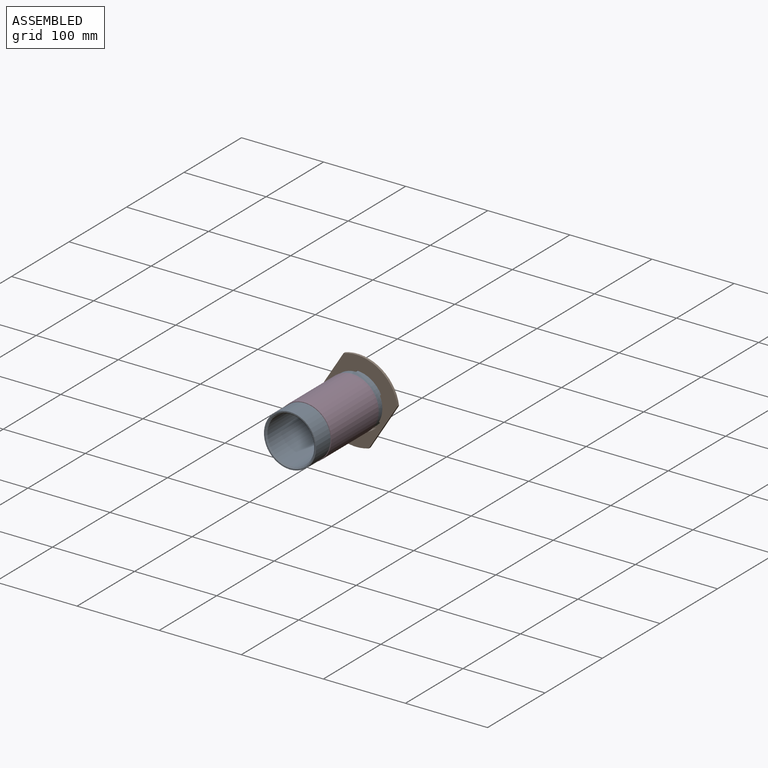
[diagram: assembled view]
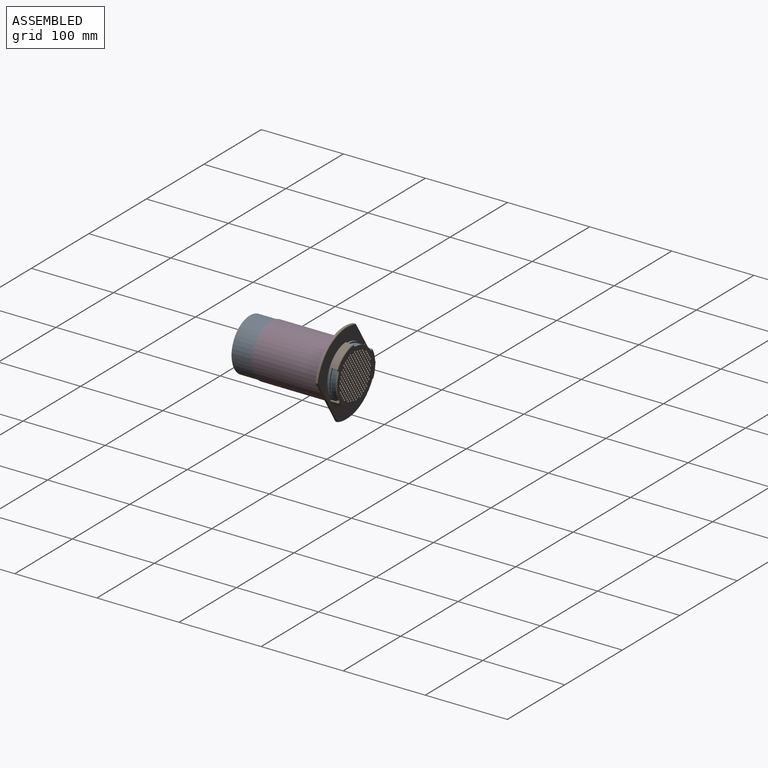
[diagram: assembled view, second angle]
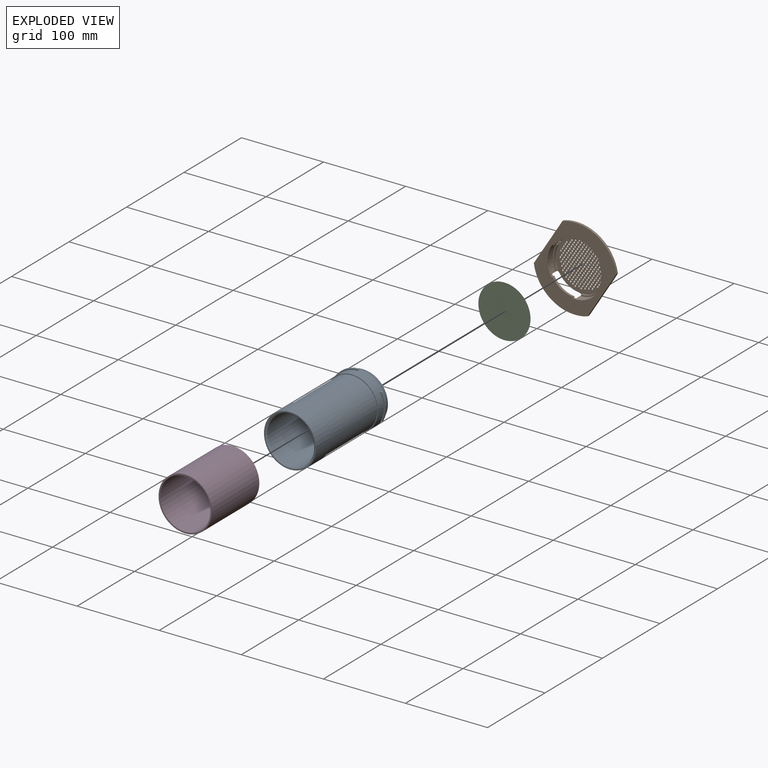
[diagram: exploded view]
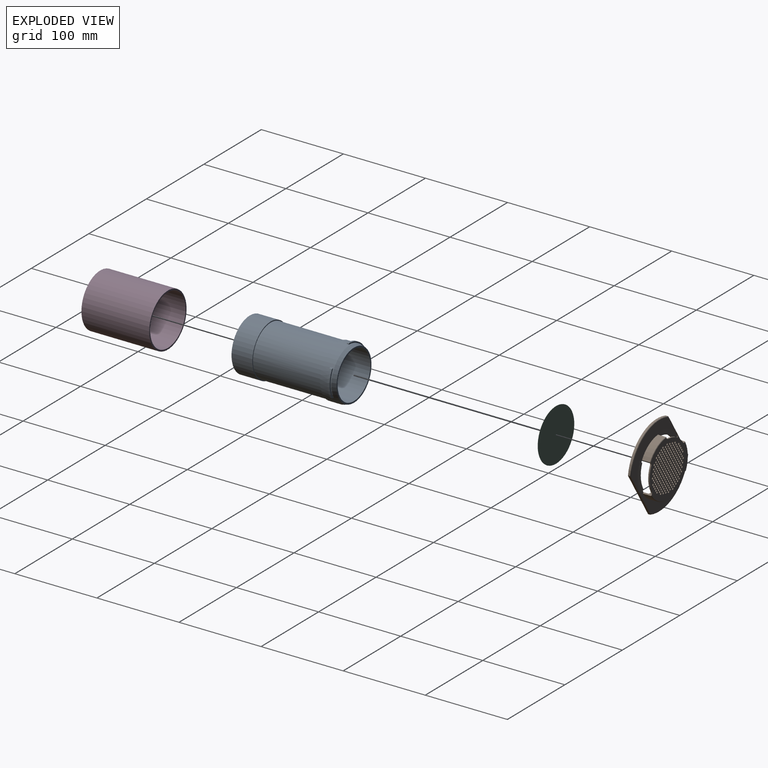
[diagram: exploded view, second angle]
ASSEMBLY  parts=4 mates=4
PART A: 37 faces, bbox 65.1x127x66.7 mm
  f0: cylinder r=31.75mm len=63.5mm, axis (0,1,0), area 2501.5mm2, adj f8,f9,f10,f13,f17,f18,f19,f22
  f1: cylinder r=31.75mm len=63.5mm, axis (0,1,0), area 5067.1mm2, adj f3,f35
  f2: cylinder r=28.57mm len=125.41mm, axis (0,1,0), area 22516.8mm2, adj f4,f36
  f3: plane 63.5x63.5mm, normal (0,-1,0), area 308.8mm2, adj f1,f36
  f4: plane 60.78x60.78mm, normal (0,1,0), area 336mm2, adj f2,f32
  f5: plane 3.17x0.06mm, normal (-0.5,0,0.87), area 0.2mm2, adj f8,f9,f10,f11
  f6: cylinder r=33.34mm len=31.98mm, axis (0,1,0), area 91.3mm2, adj f8,f9,f11,f12
  f7: plane 2.31x0.06mm, normal (-0.5,0,-0.87), area 0.1mm2, adj f8,f9,f12,f13
  f8: plane 33.03x6.22mm, normal (0,1,0), area 54.1mm2, adj f0,f5,f6,f7,f10,f11,f12,f13
  f9: plane 33.05x6.24mm, normal (0,-1,-0.03), area 54.1mm2, adj f0,f5,f6,f7,f10,f11,f12,f13
  f10: cylinder r=0.76mm len=3.17mm, axis (0,1,0), area 3.7mm2, adj f0,f5,f8,f9
  f11: cylinder r=0.76mm len=3.17mm, axis (0,1,0), area 3.8mm2, adj f5,f6,f8,f9
  f12: cylinder r=0.76mm len=2.32mm, axis (0,1,0), area 2.8mm2, adj f6,f7,f8,f9
  f13: cylinder r=0.76mm len=2.31mm, axis (0,1,0), area 2.7mm2, adj f0,f7,f8,f9
  f14: plane 3.17x0.06mm, normal (1,0,0), area 0.2mm2, adj f17,f18,f19,f20
  f15: cylinder r=33.34mm len=27.69mm, axis (0,1,0), area 91.3mm2, adj f17,f18,f20,f21
  f16: plane 2.31x0.06mm, normal (-0.5,0,0.87), area 0.1mm2, adj f17,f18,f21,f22
  f17: plane 29.33x18.1mm, normal (0,1,0), area 54.1mm2, adj f0,f14,f15,f16,f19,f20,f21,f22
  f18: plane 29.35x18.12mm, normal (-0.02,-1,0.01), area 54.1mm2, adj f0,f14,f15,f16,f19,f20,f21,f22
  f19: cylinder r=0.76mm len=3.17mm, axis (0,1,0), area 3.7mm2, adj f0,f14,f17,f18
  f20: cylinder r=0.76mm len=3.17mm, axis (0,1,0), area 3.8mm2, adj f14,f15,f17,f18
  f21: cylinder r=0.76mm len=2.32mm, axis (0,1,0), area 2.8mm2, adj f15,f16,f17,f18
  f22: cylinder r=0.76mm len=2.31mm, axis (0,1,0), area 2.7mm2, adj f0,f16,f17,f18
  f23: plane 3.17x0.06mm, normal (-0.5,0,-0.87), area 0.2mm2, adj f26,f27,f28,f29
  f24: cylinder r=33.34mm len=27.69mm, axis (0,1,0), area 91.3mm2, adj f26,f27,f29,f30
  f25: plane 2.31x0.06mm, normal (1,0,0), area 0.1mm2, adj f26,f27,f30,f31
  f26: plane 29.33x18.1mm, normal (0,1,0), area 54.1mm2, adj f0,f23,f24,f25,f28,f29,f30,f31
  f27: plane 29.35x18.12mm, normal (0.02,-1,0.01), area 54.1mm2, adj f0,f23,f24,f25,f28,f29,f30,f31
  f28: cylinder r=0.76mm len=3.17mm, axis (0,1,0), area 3.7mm2, adj f0,f23,f26,f27
  f29: cylinder r=0.76mm len=3.17mm, axis (0,1,0), area 3.8mm2, adj f23,f24,f26,f27
  f30: cylinder r=0.76mm len=2.32mm, axis (0,1,0), area 2.8mm2, adj f24,f25,f26,f27
  f31: cylinder r=0.76mm len=2.31mm, axis (0,1,0), area 2.7mm2, adj f0,f25,f26,f27
  f32: cone r=31.75mm half-angle=15deg, axis (0,-1,0), area 1026.7mm2, adj f0,f4
  f33: plane 63.5x63.5mm, normal (0,-1,0), area 199.4mm2, adj f0,f34
  f34: cylinder r=30.73mm len=82.55mm, axis (0,-1,0), area 15941mm2, adj f33,f35
  f35: plane 63.5x63.5mm, normal (0,1,0), area 199.4mm2, adj f1,f34
  f36: cone r=28.57mm half-angle=45deg, axis (0,-1,0), area 414.3mm2, adj f2,f3
PART B: 282 faces, bbox 101.6x13.5x78.3 mm
  f0: cylinder r=31.88mm len=24.4mm, axis (0,1,0), area 74.1mm2, adj f35,f36,f276,f279
  f1: plane 100.58x77.47mm, normal (0,1,0), area 2702.7mm2, adj f4,f14,f31,f32,f33,f258,f259,f261
  f2: cylinder r=33.59mm len=34.77mm, axis (0,-1,0), area 316.5mm2, adj f5,f9,f19,f28,f266,f268,f271,f272
  f3: cylinder r=33.59mm len=30.11mm, axis (0,-1,0), area 316.5mm2, adj f11,f25,f28,f35,f261,f262,f271,f273
  f4: cylinder r=35.12mm len=31.28mm, axis (0,-1,0), area 332.9mm2, adj f1,f260,f262,f271,f273
  f5: plane 31.91x5mm, normal (0,-1,0), area 51.9mm2, adj f2,f12,f277,f280
  f6: cone r=35.12mm half-angle=45deg, axis (0,-1,0), area 24.3mm2, adj f14,f34,f268,f272
  f7: cylinder r=31.88mm len=25.49mm, axis (0,1,0), area 84.2mm2, adj f8,f10,f28,f271
  f8: plane 2.37x0.8mm, normal (0.54,0,0.84), area 2.2mm2, adj f7,f9,f28,f271
  f9: cylinder r=0.76mm len=2.35mm, axis (0,-1,0), area 2.8mm2, adj f2,f8,f28,f271
  f10: plane 3.15x0.94mm, normal (-1,0,-0.04), area 3mm2, adj f7,f11,f28,f271
  f11: cylinder r=0.76mm len=3.18mm, axis (0,-1,0), area 3.8mm2, adj f3,f10,f28,f271
  f12: cylinder r=31.88mm len=28.18mm, axis (0,1,0), area 74.1mm2, adj f5,f36,f277,f280
  f13: cylinder r=33.59mm len=30.11mm, axis (0,-1,0), area 316.5mm2, adj f15,f21,f27,f28,f261,f263,f266,f267
  f14: cylinder r=35.12mm len=35.28mm, axis (0,-1,0), area 332.9mm2, adj f1,f6,f266,f268,f272
  f15: plane 27.63x15.95mm, normal (0,-1,0), area 51.9mm2, adj f13,f22,f278,f281
  f16: cone r=35.12mm half-angle=45deg, axis (0,-1,0), area 24.3mm2, adj f33,f34,f263,f267
  f17: cylinder r=31.88mm len=25.49mm, axis (0,1,0), area 84.2mm2, adj f18,f20,f28,f266
  f18: plane 3.15x0.8mm, normal (0.54,0,-0.84), area 3mm2, adj f17,f19,f28,f266
  f19: cylinder r=0.76mm len=3.18mm, axis (0,-1,0), area 3.8mm2, adj f2,f18,f28,f266
  f20: plane 2.37x0.94mm, normal (-1,0,0.04), area 2.2mm2, adj f17,f21,f28,f266
  f21: cylinder r=0.76mm len=2.35mm, axis (0,-1,0), area 2.8mm2, adj f13,f20,f28,f266
  f22: cylinder r=31.88mm len=24.4mm, axis (0,1,0), area 74.1mm2, adj f15,f36,f278,f281
  f23: cylinder r=31.88mm len=29.44mm, axis (0,1,0), area 84.2mm2, adj f24,f26,f28,f261
  f24: plane 2.37x0.84mm, normal (0.46,0,-0.89), area 2.2mm2, adj f23,f25,f28,f261
  f25: cylinder r=0.76mm len=2.35mm, axis (0,-1,0), area 2.8mm2, adj f3,f24,f28,f261
  f26: plane 3.15x0.84mm, normal (0.46,0,0.89), area 3mm2, adj f23,f27,f28,f261
  f27: cylinder r=0.76mm len=3.18mm, axis (0,-1,0), area 3.8mm2, adj f13,f26,f28,f261
  f28: plane 101.6x77.47mm, normal (0,-1,0), area 3639.4mm2, adj f2,f3,f7,f8,f9,f10,f11,f13
  f29: cylinder r=50.8mm len=77.47mm, axis (0,1,0), area 235mm2, adj f28,f31,f32,f258
  f30: cylinder r=50.8mm len=77.47mm, axis (0,1,0), area 235mm2, adj f28,f31,f32,f259
  f31: plane 65.74x3.18mm, normal (0,0,1), area 208.3mm2, adj f1,f28,f29,f30,f258,f259
  f32: plane 65.74x3.18mm, normal (0,0,-1), area 208.3mm2, adj f1,f28,f29,f30,f258,f259
  f33: cylinder r=35.12mm len=29.83mm, axis (0,-1,0), area 332.9mm2, adj f1,f16,f261,f263,f267
  f34: plane 69.17x66.48mm, normal (0,1,0), area 2484.3mm2, adj f6,f16,f37,f38,f39,f40,f41,f42
  f35: plane 27.63x15.95mm, normal (0,-1,0), area 51.9mm2, adj f0,f3,f276,f279
  f36: plane 67.16x63.75mm, normal (0,-1,0), area 2226.8mm2, adj f0,f12,f22,f37,f38,f39,f40,f41
  f37: cylinder r=1.19mm len=2.38mm, axis (0,1,0), area 12.4mm2, adj f34,f36
  f38: cylinder r=1.19mm len=2.38mm, axis (0,1,0), area 12.4mm2, adj f34,f36
  f39: cylinder r=1.19mm len=2.38mm, axis (0,1,0), area 12.4mm2, adj f34,f36
  f40: cylinder r=1.19mm len=2.38mm, axis (0,1,0), area 12.4mm2, adj f34,f36
  f41: cylinder r=1.19mm len=2.38mm, axis (0,1,0), area 12.4mm2, adj f34,f36
  f42: cylinder r=1.19mm len=2.38mm, axis (0,1,0), area 12.4mm2, adj f34,f36
  f43: cylinder r=1.19mm len=2.38mm, axis (0,1,0), area 12.4mm2, adj f34,f36
  f44: cylinder r=1.19mm len=2.38mm, axis (0,1,0), area 12.4mm2, adj f34,f36
  f45: cylinder r=1.19mm len=2.38mm, axis (0,1,0), area 12.4mm2, adj f34,f36
  f46: cylinder r=1.19mm len=2.38mm, axis (0,1,0), area 12.4mm2, adj f34,f36
  f47: cylinder r=1.19mm len=2.38mm, axis (0,1,0), area 12.4mm2, adj f34,f36
  f48: cylinder r=1.19mm len=2.38mm, axis (0,1,0), area 12.4mm2, adj f34,f36
  f49: cylinder r=1.19mm len=2.38mm, axis (0,1,0), area 12.4mm2, adj f34,f36
  f50: cylinder r=1.19mm len=2.38mm, axis (0,1,0), area 12.4mm2, adj f34,f36
  f51: cylinder r=1.19mm len=2.38mm, axis (0,1,0), area 12.4mm2, adj f34,f36
  f52: cylinder r=1.19mm len=2.38mm, axis (0,1,0), area 12.4mm2, adj f34,f36
  f53: cylinder r=1.19mm len=2.38mm, axis (0,1,0), area 12.4mm2, adj f34,f36
  f54: cylinder r=1.19mm len=2.38mm, axis (0,1,0), area 12.4mm2, adj f34,f36
  f55: cylinder r=1.19mm len=2.38mm, axis (0,1,0), area 12.4mm2, adj f34,f36
  f56: cylinder r=1.19mm len=2.38mm, axis (0,1,0), area 12.4mm2, adj f34,f36
  f57: cylinder r=1.19mm len=2.38mm, axis (0,1,0), area 12.4mm2, adj f34,f36
  f58: cylinder r=1.19mm len=2.38mm, axis (0,1,0), area 12.4mm2, adj f34,f36
  f59: cylinder r=1.19mm len=2.38mm, axis (0,1,0), area 12.4mm2, adj f34,f36
  f60: cylinder r=1.19mm len=2.38mm, axis (0,1,0), area 12.4mm2, adj f34,f36
  f61: cylinder r=1.19mm len=2.38mm, axis (0,1,0), area 12.4mm2, adj f34,f36
  f62: cylinder r=1.19mm len=2.38mm, axis (0,1,0), area 12.4mm2, adj f34,f36
  f63: cylinder r=1.19mm len=2.38mm, axis (0,1,0), area 12.4mm2, adj f34,f36
  f64: cylinder r=1.19mm len=2.38mm, axis (0,1,0), area 12.4mm2, adj f34,f36
  f65: cylinder r=1.19mm len=2.38mm, axis (0,1,0), area 12.4mm2, adj f34,f36
  f66: cylinder r=1.19mm len=2.38mm, axis (0,1,0), area 12.4mm2, adj f34,f36
  f67: cylinder r=1.19mm len=2.38mm, axis (0,1,0), area 12.4mm2, adj f34,f36
  f68: cylinder r=1.19mm len=2.38mm, axis (0,1,0), area 12.4mm2, adj f34,f36
  f69: cylinder r=1.19mm len=2.38mm, axis (0,1,0), area 12.4mm2, adj f34,f36
  f70: cylinder r=1.19mm len=2.38mm, axis (0,1,0), area 12.4mm2, adj f34,f36
  f71: cylinder r=1.19mm len=2.38mm, axis (0,1,0), area 12.4mm2, adj f34,f36
  f72: cylinder r=1.19mm len=2.38mm, axis (0,1,0), area 12.4mm2, adj f34,f36
  f73: cylinder r=1.19mm len=2.38mm, axis (0,1,0), area 12.4mm2, adj f34,f36
  f74: cylinder r=1.19mm len=2.38mm, axis (0,1,0), area 12.4mm2, adj f34,f36
  f75: cylinder r=1.19mm len=2.38mm, axis (0,1,0), area 12.4mm2, adj f34,f36
  f76: cylinder r=1.19mm len=2.38mm, axis (0,1,0), area 12.4mm2, adj f34,f36
  f77: cylinder r=1.19mm len=2.38mm, axis (0,1,0), area 12.4mm2, adj f34,f36
  f78: cylinder r=1.19mm len=2.38mm, axis (0,1,0), area 12.4mm2, adj f34,f36
  f79: cylinder r=1.19mm len=2.38mm, axis (0,1,0), area 12.4mm2, adj f34,f36
  f80: cylinder r=1.19mm len=2.38mm, axis (0,1,0), area 12.4mm2, adj f34,f36
  f81: cylinder r=1.19mm len=2.38mm, axis (0,1,0), area 12.4mm2, adj f34,f36
  f82: cylinder r=1.19mm len=2.38mm, axis (0,1,0), area 12.4mm2, adj f34,f36
  f83: cylinder r=1.19mm len=2.38mm, axis (0,1,0), area 12.4mm2, adj f34,f36
  f84: cylinder r=1.19mm len=2.38mm, axis (0,1,0), area 12.4mm2, adj f34,f36
  f85: cylinder r=1.19mm len=2.38mm, axis (0,1,0), area 12.4mm2, adj f34,f36
  f86: cylinder r=1.19mm len=2.38mm, axis (0,1,0), area 12.4mm2, adj f34,f36
  f87: cylinder r=1.19mm len=2.38mm, axis (0,1,0), area 12.4mm2, adj f34,f36
  f88: cylinder r=1.19mm len=2.38mm, axis (0,1,0), area 12.4mm2, adj f34,f36
  f89: cylinder r=1.19mm len=2.38mm, axis (0,1,0), area 12.4mm2, adj f34,f36
  f90: cylinder r=1.19mm len=2.38mm, axis (0,1,0), area 12.4mm2, adj f34,f36
  f91: cylinder r=1.19mm len=2.38mm, axis (0,1,0), area 12.4mm2, adj f34,f36
  f92: cylinder r=1.19mm len=2.38mm, axis (0,1,0), area 12.4mm2, adj f34,f36
  f93: cylinder r=1.19mm len=2.38mm, axis (0,1,0), area 12.4mm2, adj f34,f36
  f94: cylinder r=1.19mm len=2.38mm, axis (0,1,0), area 12.4mm2, adj f34,f36
  f95: cylinder r=1.19mm len=2.38mm, axis (0,1,0), area 12.4mm2, adj f34,f36
  f96: cylinder r=1.19mm len=2.38mm, axis (0,1,0), area 12.4mm2, adj f34,f36
  f97: cylinder r=1.19mm len=2.38mm, axis (0,1,0), area 12.4mm2, adj f34,f36
  f98: cylinder r=1.19mm len=2.38mm, axis (0,1,0), area 12.4mm2, adj f34,f36
  f99: cylinder r=1.19mm len=2.38mm, axis (0,1,0), area 12.4mm2, adj f34,f36
  f100: cylinder r=1.19mm len=2.38mm, axis (0,1,0), area 12.4mm2, adj f34,f36
  f101: cylinder r=1.19mm len=2.38mm, axis (0,1,0), area 12.4mm2, adj f34,f36
  f102: cylinder r=1.19mm len=2.38mm, axis (0,1,0), area 12.4mm2, adj f34,f36
  f103: cylinder r=1.19mm len=2.38mm, axis (0,1,0), area 12.4mm2, adj f34,f36
  f104: cylinder r=1.19mm len=2.38mm, axis (0,1,0), area 12.4mm2, adj f34,f36
  f105: cylinder r=1.19mm len=2.38mm, axis (0,1,0), area 12.4mm2, adj f34,f36
  f106: cylinder r=1.19mm len=2.38mm, axis (0,1,0), area 12.4mm2, adj f34,f36
  f107: cylinder r=1.19mm len=2.38mm, axis (0,1,0), area 12.4mm2, adj f34,f36
  f108: cylinder r=1.19mm len=2.38mm, axis (0,1,0), area 12.4mm2, adj f34,f36
  f109: cylinder r=1.19mm len=2.38mm, axis (0,1,0), area 12.4mm2, adj f34,f36
  f110: cylinder r=1.19mm len=2.38mm, axis (0,1,0), area 12.4mm2, adj f34,f36
  f111: cylinder r=1.19mm len=2.38mm, axis (0,1,0), area 12.4mm2, adj f34,f36
  f112: cylinder r=1.19mm len=2.38mm, axis (0,1,0), area 12.4mm2, adj f34,f36
  f113: cylinder r=1.19mm len=2.38mm, axis (0,1,0), area 12.4mm2, adj f34,f36
  f114: cylinder r=1.19mm len=2.38mm, axis (0,1,0), area 12.4mm2, adj f34,f36
  f115: cylinder r=1.19mm len=2.38mm, axis (0,1,0), area 12.4mm2, adj f34,f36
  f116: cylinder r=1.19mm len=2.38mm, axis (0,1,0), area 12.4mm2, adj f34,f36
  f117: cylinder r=1.19mm len=2.38mm, axis (0,1,0), area 12.4mm2, adj f34,f36
  f118: cylinder r=1.19mm len=2.38mm, axis (0,1,0), area 12.4mm2, adj f34,f36
  f119: cylinder r=1.19mm len=2.38mm, axis (0,1,0), area 12.4mm2, adj f34,f36
  f120: cylinder r=1.19mm len=2.38mm, axis (0,1,0), area 12.4mm2, adj f34,f36
  f121: cylinder r=1.19mm len=2.38mm, axis (0,1,0), area 12.4mm2, adj f34,f36
  f122: cylinder r=1.19mm len=2.38mm, axis (0,1,0), area 12.4mm2, adj f34,f36
  f123: cylinder r=1.19mm len=2.38mm, axis (0,1,0), area 12.4mm2, adj f34,f36
  f124: cylinder r=1.19mm len=2.38mm, axis (0,1,0), area 12.4mm2, adj f34,f36
  f125: cylinder r=1.19mm len=2.38mm, axis (0,1,0), area 12.4mm2, adj f34,f36
  f126: cylinder r=1.19mm len=2.38mm, axis (0,1,0), area 12.4mm2, adj f34,f36
  f127: cylinder r=1.19mm len=2.38mm, axis (0,1,0), area 12.4mm2, adj f34,f36
  f128: cylinder r=1.19mm len=2.38mm, axis (0,1,0), area 12.4mm2, adj f34,f36
  f129: cylinder r=1.19mm len=2.38mm, axis (0,1,0), area 12.4mm2, adj f34,f36
  f130: cylinder r=1.19mm len=2.38mm, axis (0,1,0), area 12.4mm2, adj f34,f36
  f131: cylinder r=1.19mm len=2.38mm, axis (0,1,0), area 12.4mm2, adj f34,f36
  f132: cylinder r=1.19mm len=2.38mm, axis (0,1,0), area 12.4mm2, adj f34,f36
  f133: cylinder r=1.19mm len=2.38mm, axis (0,1,0), area 12.4mm2, adj f34,f36
  f134: cylinder r=1.19mm len=2.38mm, axis (0,1,0), area 12.4mm2, adj f34,f36
  f135: cylinder r=1.19mm len=2.38mm, axis (0,1,0), area 12.4mm2, adj f34,f36
  f136: cylinder r=1.19mm len=2.38mm, axis (0,1,0), area 12.4mm2, adj f34,f36
  f137: cylinder r=1.19mm len=2.38mm, axis (0,1,0), area 12.4mm2, adj f34,f36
  f138: cylinder r=1.19mm len=2.38mm, axis (0,1,0), area 12.4mm2, adj f34,f36
  f139: cylinder r=1.19mm len=2.38mm, axis (0,1,0), area 12.4mm2, adj f34,f36
  f140: cylinder r=1.19mm len=2.38mm, axis (0,1,0), area 12.4mm2, adj f34,f36
  f141: cylinder r=1.19mm len=2.38mm, axis (0,1,0), area 12.4mm2, adj f34,f36
  f142: cylinder r=1.19mm len=2.38mm, axis (0,1,0), area 12.4mm2, adj f34,f36
  f143: cylinder r=1.19mm len=2.38mm, axis (0,1,0), area 12.4mm2, adj f34,f36
  f144: cylinder r=1.19mm len=2.38mm, axis (0,1,0), area 12.4mm2, adj f34,f36
  f145: cylinder r=1.19mm len=2.38mm, axis (0,1,0), area 12.4mm2, adj f34,f36
  f146: cylinder r=1.19mm len=2.38mm, axis (0,1,0), area 12.4mm2, adj f34,f36
  f147: cylinder r=1.19mm len=2.38mm, axis (0,1,0), area 12.4mm2, adj f34,f36
  f148: cylinder r=1.19mm len=2.38mm, axis (0,1,0), area 12.4mm2, adj f34,f36
  f149: cylinder r=1.19mm len=2.38mm, axis (0,1,0), area 12.4mm2, adj f34,f36
  f150: cylinder r=1.19mm len=2.38mm, axis (0,1,0), area 12.4mm2, adj f34,f36
  f151: cylinder r=1.19mm len=2.38mm, axis (0,1,0), area 12.4mm2, adj f34,f36
  f152: cylinder r=1.19mm len=2.38mm, axis (0,1,0), area 12.4mm2, adj f34,f36
  f153: cylinder r=1.19mm len=2.38mm, axis (0,1,0), area 12.4mm2, adj f34,f36
  f154: cylinder r=1.19mm len=2.38mm, axis (0,1,0), area 12.4mm2, adj f34,f36
  f155: cylinder r=1.19mm len=2.38mm, axis (0,1,0), area 12.4mm2, adj f34,f36
  f156: cylinder r=1.19mm len=2.38mm, axis (0,1,0), area 12.4mm2, adj f34,f36
  f157: cylinder r=1.19mm len=2.38mm, axis (0,1,0), area 12.4mm2, adj f34,f36
  f158: cylinder r=1.19mm len=2.38mm, axis (0,1,0), area 12.4mm2, adj f34,f36
  f159: cylinder r=1.19mm len=2.38mm, axis (0,1,0), area 12.4mm2, adj f34,f36
  f160: cylinder r=1.19mm len=2.38mm, axis (0,1,0), area 12.4mm2, adj f34,f36
  f161: cylinder r=1.19mm len=2.38mm, axis (0,1,0), area 12.4mm2, adj f34,f36
  f162: cylinder r=1.19mm len=2.38mm, axis (0,1,0), area 12.4mm2, adj f34,f36
  f163: cylinder r=1.19mm len=2.38mm, axis (0,1,0), area 12.4mm2, adj f34,f36
  f164: cylinder r=1.19mm len=2.38mm, axis (0,1,0), area 12.4mm2, adj f34,f36
  f165: cylinder r=1.19mm len=2.38mm, axis (0,1,0), area 12.4mm2, adj f34,f36
  f166: cylinder r=1.19mm len=2.38mm, axis (0,1,0), area 12.4mm2, adj f34,f36
  f167: cylinder r=1.19mm len=2.38mm, axis (0,1,0), area 12.4mm2, adj f34,f36
  f168: cylinder r=1.19mm len=2.38mm, axis (0,1,0), area 12.4mm2, adj f34,f36
  f169: cylinder r=1.19mm len=2.38mm, axis (0,1,0), area 12.4mm2, adj f34,f36
  f170: cylinder r=1.19mm len=2.38mm, axis (0,1,0), area 12.4mm2, adj f34,f36
  f171: cylinder r=1.19mm len=2.38mm, axis (0,1,0), area 12.4mm2, adj f34,f36
  f172: cylinder r=1.19mm len=2.38mm, axis (0,1,0), area 12.4mm2, adj f34,f36
  f173: cylinder r=1.19mm len=2.38mm, axis (0,1,0), area 12.4mm2, adj f34,f36
  f174: cylinder r=1.19mm len=2.38mm, axis (0,1,0), area 12.4mm2, adj f34,f36
  f175: cylinder r=1.19mm len=2.38mm, axis (0,1,0), area 12.4mm2, adj f34,f36
  f176: cylinder r=1.19mm len=2.38mm, axis (0,1,0), area 12.4mm2, adj f34,f36
  f177: cylinder r=1.19mm len=2.38mm, axis (0,1,0), area 12.4mm2, adj f34,f36
  f178: cylinder r=1.19mm len=2.38mm, axis (0,1,0), area 12.4mm2, adj f34,f36
  f179: cylinder r=1.19mm len=2.38mm, axis (0,1,0), area 12.4mm2, adj f34,f36
  f180: cylinder r=1.19mm len=2.38mm, axis (0,1,0), area 12.4mm2, adj f34,f36
  f181: cylinder r=1.19mm len=2.38mm, axis (0,1,0), area 12.4mm2, adj f34,f36
  f182: cylinder r=1.19mm len=2.38mm, axis (0,1,0), area 12.4mm2, adj f34,f36
  f183: cylinder r=1.19mm len=2.38mm, axis (0,1,0), area 12.4mm2, adj f34,f36
  f184: cylinder r=1.19mm len=2.38mm, axis (0,1,0), area 12.4mm2, adj f34,f36
  f185: cylinder r=1.19mm len=2.38mm, axis (0,1,0), area 12.4mm2, adj f34,f36
  f186: cylinder r=1.19mm len=2.38mm, axis (0,1,0), area 12.4mm2, adj f34,f36
  f187: cylinder r=1.19mm len=2.38mm, axis (0,1,0), area 12.4mm2, adj f34,f36
  f188: cylinder r=1.19mm len=2.38mm, axis (0,1,0), area 12.4mm2, adj f34,f36
  f189: cylinder r=1.19mm len=2.38mm, axis (0,1,0), area 12.4mm2, adj f34,f36
  f190: cylinder r=1.19mm len=2.38mm, axis (0,1,0), area 12.4mm2, adj f34,f36
  f191: cylinder r=1.19mm len=2.38mm, axis (0,1,0), area 12.4mm2, adj f34,f36
  f192: cylinder r=1.19mm len=2.38mm, axis (0,1,0), area 12.4mm2, adj f34,f36
  f193: cylinder r=1.19mm len=2.38mm, axis (0,1,0), area 12.4mm2, adj f34,f36
  f194: cylinder r=1.19mm len=2.38mm, axis (0,1,0), area 12.4mm2, adj f34,f36
  f195: cylinder r=1.19mm len=2.38mm, axis (0,1,0), area 12.4mm2, adj f34,f36
  f196: cylinder r=1.19mm len=2.38mm, axis (0,1,0), area 12.4mm2, adj f34,f36
  f197: cylinder r=1.19mm len=2.38mm, axis (0,1,0), area 12.4mm2, adj f34,f36
  f198: cylinder r=1.19mm len=2.38mm, axis (0,1,0), area 12.4mm2, adj f34,f36
  f199: cylinder r=1.19mm len=2.38mm, axis (0,1,0), area 12.4mm2, adj f34,f36
  f200: cylinder r=1.19mm len=2.38mm, axis (0,1,0), area 12.4mm2, adj f34,f36
  f201: cylinder r=1.19mm len=2.38mm, axis (0,1,0), area 12.4mm2, adj f34,f36
  f202: cylinder r=1.19mm len=2.38mm, axis (0,1,0), area 12.4mm2, adj f34,f36
  f203: cylinder r=1.19mm len=2.38mm, axis (0,1,0), area 12.4mm2, adj f34,f36
  f204: cylinder r=1.19mm len=2.38mm, axis (0,1,0), area 12.4mm2, adj f34,f36
  f205: cylinder r=1.19mm len=2.38mm, axis (0,1,0), area 12.4mm2, adj f34,f36
  f206: cylinder r=1.19mm len=2.38mm, axis (0,1,0), area 12.4mm2, adj f34,f36
  f207: cylinder r=1.19mm len=2.38mm, axis (0,1,0), area 12.4mm2, adj f34,f36
  f208: cylinder r=1.19mm len=2.38mm, axis (0,1,0), area 12.4mm2, adj f34,f36
  f209: cylinder r=1.19mm len=2.38mm, axis (0,1,0), area 12.4mm2, adj f34,f36
  f210: cylinder r=1.19mm len=2.38mm, axis (0,1,0), area 12.4mm2, adj f34,f36
  f211: cylinder r=1.19mm len=2.38mm, axis (0,1,0), area 12.4mm2, adj f34,f36
  f212: cylinder r=1.19mm len=2.38mm, axis (0,1,0), area 12.4mm2, adj f34,f36
  f213: cylinder r=1.19mm len=2.38mm, axis (0,1,0), area 12.4mm2, adj f34,f36
  f214: cylinder r=1.19mm len=2.38mm, axis (0,1,0), area 12.4mm2, adj f34,f36
  f215: cylinder r=1.19mm len=2.38mm, axis (0,1,0), area 12.4mm2, adj f34,f36
  f216: cylinder r=1.19mm len=2.38mm, axis (0,1,0), area 12.4mm2, adj f34,f36
  f217: cylinder r=1.19mm len=2.38mm, axis (0,1,0), area 12.4mm2, adj f34,f36
  f218: cylinder r=1.19mm len=2.38mm, axis (0,1,0), area 12.4mm2, adj f34,f36
  f219: cylinder r=1.19mm len=2.38mm, axis (0,1,0), area 12.4mm2, adj f34,f36
  f220: cylinder r=1.19mm len=2.38mm, axis (0,1,0), area 12.4mm2, adj f34,f36
  f221: cylinder r=1.19mm len=2.38mm, axis (0,1,0), area 12.4mm2, adj f34,f36
  f222: cylinder r=1.19mm len=2.38mm, axis (0,1,0), area 12.4mm2, adj f34,f36
  f223: cylinder r=1.19mm len=2.38mm, axis (0,1,0), area 12.4mm2, adj f34,f36
  f224: cylinder r=1.19mm len=2.38mm, axis (0,1,0), area 12.4mm2, adj f34,f36
  f225: cylinder r=1.19mm len=2.38mm, axis (0,1,0), area 12.4mm2, adj f34,f36
  f226: cylinder r=1.19mm len=2.38mm, axis (0,1,0), area 12.4mm2, adj f34,f36
  f227: cylinder r=1.19mm len=2.38mm, axis (0,1,0), area 12.4mm2, adj f34,f36
  f228: cylinder r=1.19mm len=2.38mm, axis (0,1,0), area 12.4mm2, adj f34,f36
  f229: cylinder r=1.19mm len=2.38mm, axis (0,1,0), area 12.4mm2, adj f34,f36
  f230: cylinder r=1.19mm len=2.38mm, axis (0,1,0), area 12.4mm2, adj f34,f36
  f231: cylinder r=1.19mm len=2.38mm, axis (0,1,0), area 12.4mm2, adj f34,f36
  f232: cylinder r=1.19mm len=2.38mm, axis (0,1,0), area 12.4mm2, adj f34,f36
  f233: cylinder r=1.19mm len=2.38mm, axis (0,1,0), area 12.4mm2, adj f34,f36
  f234: cylinder r=1.19mm len=2.38mm, axis (0,1,0), area 12.4mm2, adj f34,f36
  f235: cylinder r=1.19mm len=2.38mm, axis (0,1,0), area 12.4mm2, adj f34,f36
  f236: cylinder r=1.19mm len=2.38mm, axis (0,1,0), area 12.4mm2, adj f34,f36
  f237: cylinder r=1.19mm len=2.38mm, axis (0,1,0), area 12.4mm2, adj f34,f36
  f238: cylinder r=1.19mm len=2.38mm, axis (0,1,0), area 12.4mm2, adj f34,f36
  f239: cylinder r=1.19mm len=2.38mm, axis (0,1,0), area 12.4mm2, adj f34,f36
  f240: cylinder r=1.19mm len=2.38mm, axis (0,1,0), area 12.4mm2, adj f34,f36
  f241: cylinder r=1.19mm len=2.38mm, axis (0,1,0), area 12.4mm2, adj f34,f36
  f242: cylinder r=1.19mm len=2.38mm, axis (0,1,0), area 12.4mm2, adj f34,f36
  f243: cylinder r=1.19mm len=2.38mm, axis (0,1,0), area 12.4mm2, adj f34,f36
  f244: cylinder r=1.19mm len=2.38mm, axis (0,1,0), area 12.4mm2, adj f34,f36
  f245: cylinder r=1.19mm len=2.38mm, axis (0,1,0), area 12.4mm2, adj f34,f36
  f246: cylinder r=1.19mm len=2.38mm, axis (0,1,0), area 12.4mm2, adj f34,f36
  f247: cylinder r=1.19mm len=2.38mm, axis (0,1,0), area 12.4mm2, adj f34,f36
  f248: cylinder r=1.19mm len=2.38mm, axis (0,1,0), area 12.4mm2, adj f34,f36
  f249: cylinder r=1.19mm len=2.38mm, axis (0,1,0), area 12.4mm2, adj f34,f36
  f250: cylinder r=1.19mm len=2.38mm, axis (0,1,0), area 12.4mm2, adj f34,f36
  f251: cylinder r=1.19mm len=2.38mm, axis (0,1,0), area 12.4mm2, adj f34,f36
  f252: cylinder r=1.19mm len=2.38mm, axis (0,1,0), area 12.4mm2, adj f34,f36
  f253: cylinder r=1.19mm len=2.38mm, axis (0,1,0), area 12.4mm2, adj f34,f36
  f254: cylinder r=1.19mm len=2.38mm, axis (0,1,0), area 12.4mm2, adj f34,f36
  f255: cylinder r=1.19mm len=2.38mm, axis (0,1,0), area 12.4mm2, adj f34,f36
  f256: cylinder r=1.19mm len=2.38mm, axis (0,1,0), area 12.4mm2, adj f34,f36
  f257: cylinder r=1.19mm len=2.38mm, axis (0,1,0), area 12.4mm2, adj f34,f36
  f258: cone r=50.29mm half-angle=45deg, axis (0,-1,0), area 63.4mm2, adj f1,f29,f31,f32
  f259: cone r=50.29mm half-angle=45deg, axis (0,-1,0), area 63.4mm2, adj f1,f30,f31,f32
  f260: cone r=35.12mm half-angle=45deg, axis (0,-1,0), area 24.3mm2, adj f4,f34,f262,f273
  f261: plane 37.82x10.09mm, normal (0,1,-0.03), area 231.3mm2, adj f1,f3,f13,f23,f24,f25,f26,f27
  f262: cylinder r=3.24mm len=11.19mm, axis (0,1,0), area 27.7mm2, adj f1,f3,f4,f34,f36,f260,f261,f264
  f263: cylinder r=3.24mm len=10.22mm, axis (0,1,0), area 21.5mm2, adj f13,f16,f33,f34,f36,f261,f264,f278
  f264: cylinder r=31.88mm len=28.82mm, axis (0,1,0), area 49.4mm2, adj f34,f36,f262,f263
  f265: cylinder r=38.35mm len=33.54mm, axis (0,1,0), area 15.2mm2, adj f1,f261,f262
  f266: plane 32.75x22.36mm, normal (-0.02,1,0.01), area 231.3mm2, adj f1,f2,f13,f14,f17,f18,f19,f20
  f267: cylinder r=3.24mm len=11.19mm, axis (0,1,0), area 27.7mm2, adj f1,f13,f16,f33,f34,f36,f266,f269
  f268: cylinder r=3.24mm len=10.22mm, axis (0,1,0), area 21.5mm2, adj f2,f6,f14,f34,f36,f266,f269,f280
  f269: cylinder r=31.88mm len=24.96mm, axis (0,1,0), area 49.4mm2, adj f34,f36,f267,f268
  f270: cylinder r=38.35mm len=29.32mm, axis (0,1,0), area 15.2mm2, adj f1,f266,f267
  f271: plane 33.99x22.27mm, normal (0.02,1,0.01), area 231.3mm2, adj f1,f2,f3,f4,f7,f8,f9,f10
  f272: cylinder r=3.24mm len=11.19mm, axis (0,1,0), area 27.7mm2, adj f1,f2,f6,f14,f34,f36,f271,f274
  f273: cylinder r=3.24mm len=10.22mm, axis (0,1,0), area 21.5mm2, adj f3,f4,f34,f36,f260,f271,f274,f276
  f274: cylinder r=31.88mm len=24.96mm, axis (0,1,0), area 49.4mm2, adj f34,f36,f272,f273
  f275: cylinder r=38.35mm len=28.77mm, axis (0,1,0), area 15.2mm2, adj f1,f271,f272
  f276: cylinder r=1.27mm len=2.54mm, axis (0,-1,0), area 6.3mm2, adj f0,f35,f36,f273
  f277: cylinder r=1.27mm len=2.54mm, axis (0,-1,0), area 6.3mm2, adj f5,f12,f36,f272
  f278: cylinder r=1.27mm len=2.54mm, axis (0,-1,0), area 6.3mm2, adj f15,f22,f36,f263
  f279: cylinder r=1.27mm len=2.54mm, axis (0,-1,0), area 6.3mm2, adj f0,f35,f36,f262
  f280: cylinder r=1.27mm len=2.54mm, axis (0,-1,0), area 6.3mm2, adj f5,f12,f36,f268
  f281: cylinder r=1.27mm len=2.54mm, axis (0,-1,0), area 6.3mm2, adj f15,f22,f36,f267
PART C: 3 faces, bbox 63.5x0.1x63.5 mm
  f0: cylinder r=31.75mm len=63.5mm, axis (0,1,0), area 25.3mm2, adj f1,f2
  f1: plane 63.5x63.5mm, normal (0,-1,0), area 3166.9mm2, adj f0
  f2: plane 63.5x63.5mm, normal (0,1,0), area 3166.9mm2, adj f0
PART D: 4 faces, bbox 65x82.6x65 mm
  f0: plane 65.02x65.02mm, normal (0,-1,0), area 353.3mm2, adj f1,f2
  f1: cylinder r=32.51mm len=82.55mm, axis (0,1,0), area 16863.2mm2, adj f0,f3
  f2: cylinder r=30.73mm len=82.55mm, axis (0,1,0), area 15941mm2, adj f0,f3
  f3: plane 65.02x65.02mm, normal (0,1,0), area 353.3mm2, adj f1,f2
PLACE A t=(16.11,74.41,7.52)mm fixed
PLACE B rot(axis=(0,-1,0),57.9deg) t=(16.11,73.91,7.52)mm
PLACE C rot(axis=(0,-1,0),57.9deg) t=(16.11,73.91,7.52)mm
PLACE D t=(16.11,74.41,7.52)mm
MATE fastened C.f0 <-> B.f4  axis (0,1,0) through (16.11,74.41,7.52)mm
MATE fastened A.f0 <-> D.f1  axis (0,1,0) through (16.11,-27.19,7.52)mm
MATE cylindrical A.f0 <-> B.f2  axis (0,1,0) through (16.11,-39.89,7.52)mm
MATE planar B.f0 <-> A.f2  axis (0,-1,0) through (16.11,74.41,7.52)mm
